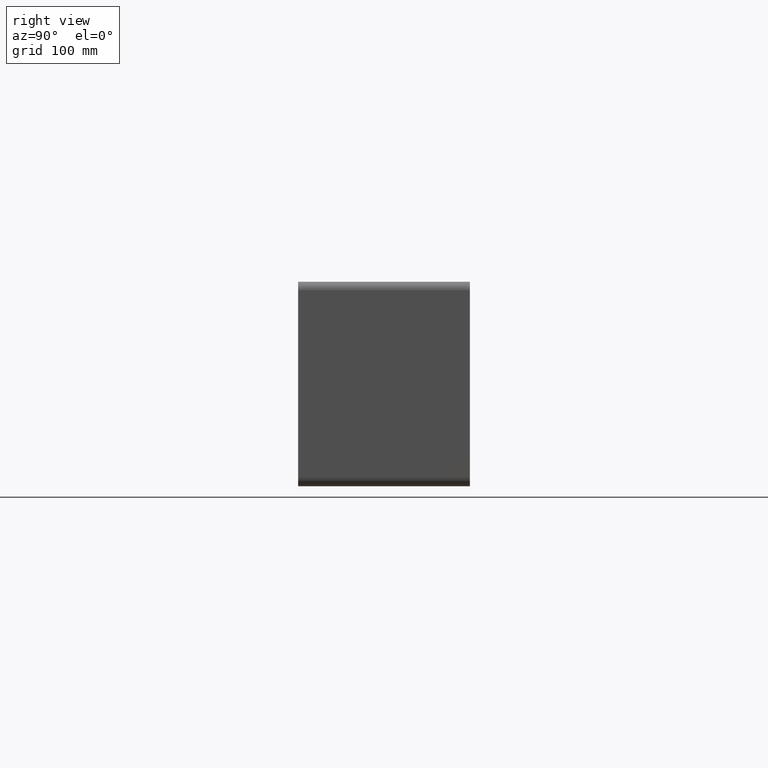
[diagram: clean part render]
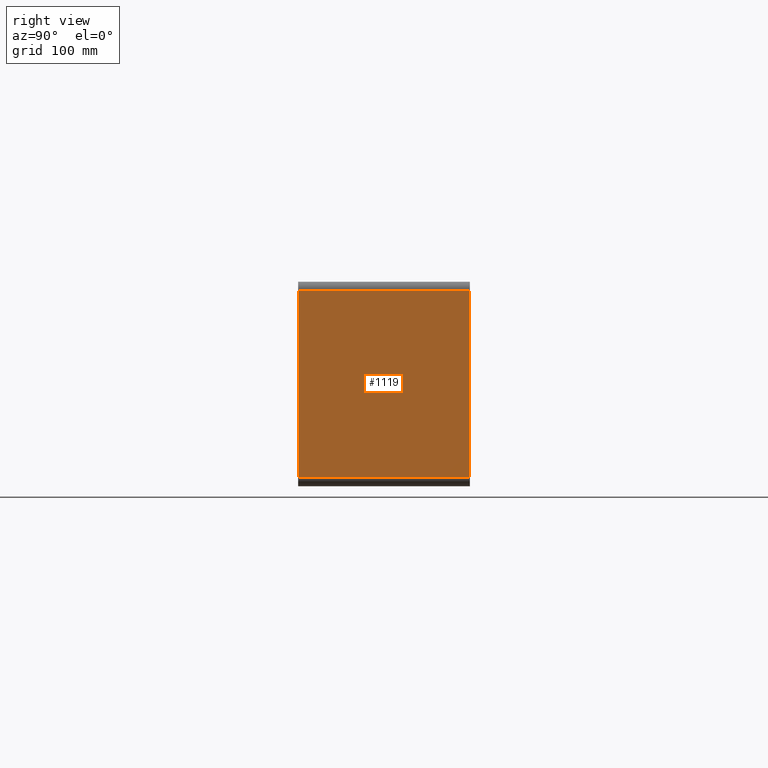
[diagram: same view with one face highlighted and labeled with its STEP entity id]
A machine part, right view. The second image highlights one B-rep face of the part: STEP entity #1119.
In plain terms, the highlighted planar face has unit normal (1, 0, 0).
Its self-contained STEP definition (entity closure, byte-faithful):
#824=CARTESIAN_POINT('',(396.50000000000006,-3.0,-109.00000000000003));
#825=VERTEX_POINT('',#824);
#833=CARTESIAN_POINT('',(396.50000000000006,-3.0,108.99999999999999));
#834=VERTEX_POINT('',#833);
#835=CARTESIAN_POINT('',(396.50000000000006,-3.0,-109.00000000000001));
#836=DIRECTION('',(0.0,0.0,1.0));
#837=VECTOR('',#836,218.0);
#838=LINE('',#835,#837);
#839=EDGE_CURVE('',#825,#834,#838,.T.);
#951=CARTESIAN_POINT('',(396.50000000000006,197.0,-109.00000000000003));
#952=VERTEX_POINT('',#951);
#960=CARTESIAN_POINT('',(396.50000000000006,197.0,-109.00000000000003));
#961=DIRECTION('',(0.0,-1.0,0.0));
#962=VECTOR('',#961,200.0);
#963=LINE('',#960,#962);
#964=EDGE_CURVE('',#952,#825,#963,.T.);
#977=CARTESIAN_POINT('',(396.50000000000006,197.0,108.99999999999999));
#978=VERTEX_POINT('',#977);
#979=CARTESIAN_POINT('',(396.50000000000006,-3.0,108.99999999999999));
#980=DIRECTION('',(0.0,1.0,0.0));
#981=VECTOR('',#980,200.0);
#982=LINE('',#979,#981);
#983=EDGE_CURVE('',#834,#978,#982,.T.);
#1103=CARTESIAN_POINT('',(396.50000000000006,0.0,118.99999999999999));
#1104=DIRECTION('',(1.0,0.0,0.0));
#1105=DIRECTION('',(0.0,0.0,-1.0));
#1106=AXIS2_PLACEMENT_3D('',#1103,#1104,#1105);
#1107=PLANE('',#1106);
#1108=ORIENTED_EDGE('',*,*,#964,.F.);
#1109=CARTESIAN_POINT('',(396.50000000000006,197.0,108.99999999999999));
#1110=DIRECTION('',(0.0,0.0,-1.0));
#1111=VECTOR('',#1110,218.0);
#1112=LINE('',#1109,#1111);
#1113=EDGE_CURVE('',#978,#952,#1112,.T.);
#1114=ORIENTED_EDGE('',*,*,#1113,.F.);
#1115=ORIENTED_EDGE('',*,*,#983,.F.);
#1116=ORIENTED_EDGE('',*,*,#839,.F.);
#1117=EDGE_LOOP('',(#1108,#1114,#1115,#1116));
#1118=FACE_OUTER_BOUND('',#1117,.T.);
#1119=ADVANCED_FACE('',(#1118),#1107,.T.);